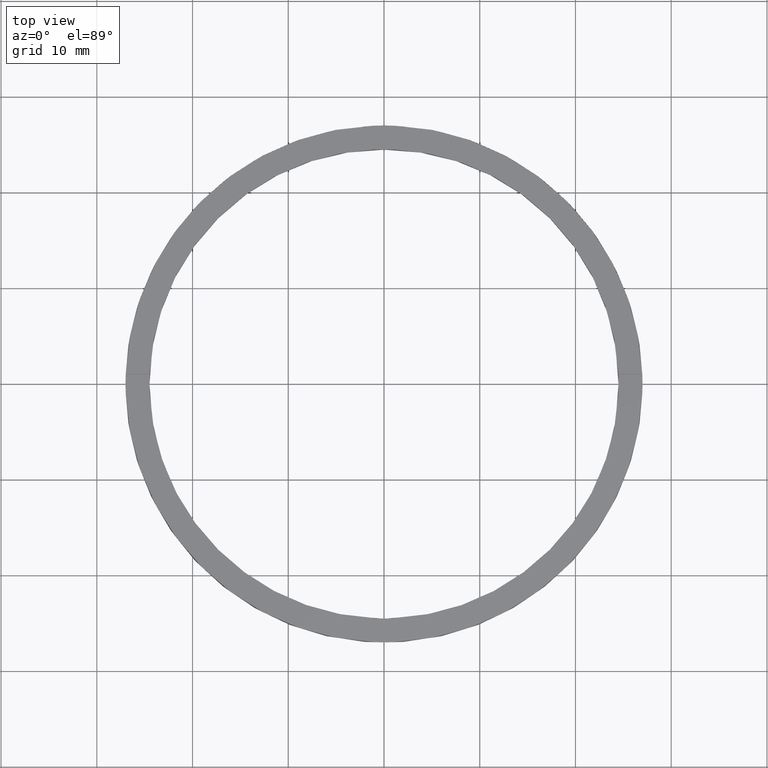
[diagram: clean part render]
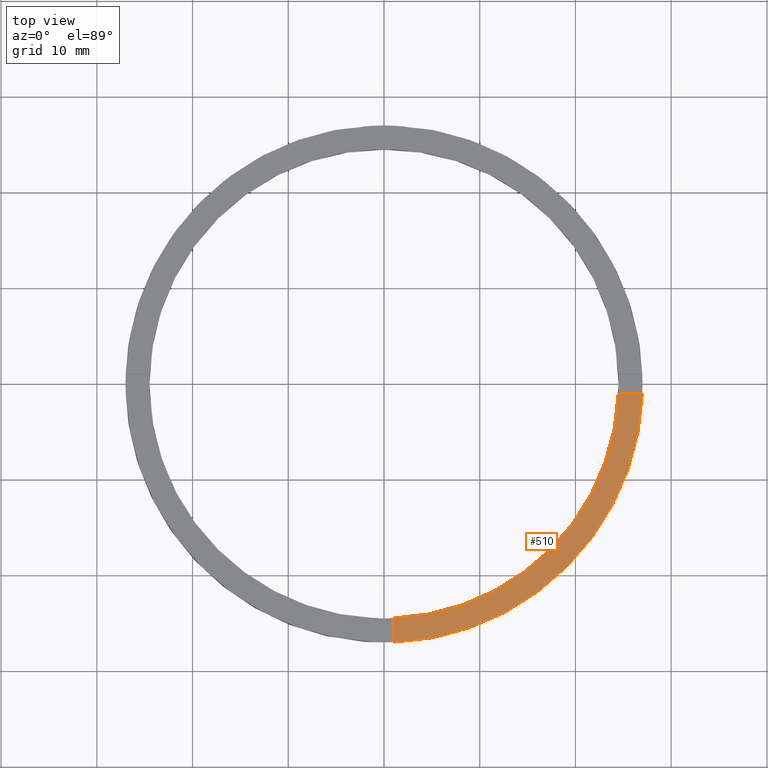
[diagram: same view with one face highlighted and labeled with its STEP entity id]
A machine part, top view. The second image highlights one B-rep face of the part: STEP entity #510.
In plain terms, the highlighted planar face has unit normal (0, 0, 1).
Its self-contained STEP definition (entity closure, byte-faithful):
#4 = DIRECTION ( 'NONE',  ( 1.000000000000000000, 4.336808689942018352E-17, 0.000000000000000000 ) ) ;
#32 = ORIENTED_EDGE ( 'NONE', *, *, #523, .F. ) ;
#66 = CARTESIAN_POINT ( 'NONE',  ( 0.000000000000000000, 0.000000000000000000, 2.500000000000000000 ) ) ;
#102 = CARTESIAN_POINT ( 'NONE',  ( 24.47958332978728890, -1.000000000000157208, 2.500000000000000000 ) ) ;
#117 = DIRECTION ( 'NONE',  ( 1.000000000000000000, 0.000000000000000000, 0.000000000000000000 ) ) ;
#125 = EDGE_CURVE ( 'NONE', #708, #446, #304, .T. ) ;
#128 = CARTESIAN_POINT ( 'NONE',  ( 0.9999999999998400169, -26.98147512646408686, 2.500000000000000000 ) ) ;
#144 = LINE ( 'NONE', #547, #153 ) ;
#148 = CIRCLE ( 'NONE', #261, 27.00000000000000000 ) ;
#153 = VECTOR ( 'NONE', #4, 1000.000000000000000 ) ;
#168 = AXIS2_PLACEMENT_3D ( 'NONE', #66, #663, #303 ) ;
#170 = LINE ( 'NONE', #597, #177 ) ;
#177 = VECTOR ( 'NONE', #217, 1000.000000000000000 ) ;
#184 = VERTEX_POINT ( 'NONE', #671 ) ;
#194 = VERTEX_POINT ( 'NONE', #128 ) ;
#195 = CARTESIAN_POINT ( 'NONE',  ( 0.000000000000000000, 0.000000000000000000, 2.500000000000000000 ) ) ;
#203 = EDGE_CURVE ( 'NONE', #446, #184, #144, .T. ) ;
#217 = DIRECTION ( 'NONE',  ( -1.301042606982605567E-16, 1.000000000000000000, -0.000000000000000000 ) ) ;
#222 = PLANE ( 'NONE',  #168 ) ;
#261 = AXIS2_PLACEMENT_3D ( 'NONE', #195, #591, #117 ) ;
#286 = DIRECTION ( 'NONE',  ( 1.000000000000000000, 0.000000000000000000, 0.000000000000000000 ) ) ;
#288 = EDGE_CURVE ( 'NONE', #194, #184, #148, .T. ) ;
#303 = DIRECTION ( 'NONE',  ( 1.000000000000000000, 0.000000000000000000, -0.000000000000000000 ) ) ;
#304 = CIRCLE ( 'NONE', #540, 24.50000000000000000 ) ;
#321 = ORIENTED_EDGE ( 'NONE', *, *, #203, .F. ) ;
#446 = VERTEX_POINT ( 'NONE', #102 ) ;
#510 = ADVANCED_FACE ( 'NONE', ( #660 ), #222, .T. ) ;
#523 = EDGE_CURVE ( 'NONE', #194, #708, #170, .T. ) ;
#540 = AXIS2_PLACEMENT_3D ( 'NONE', #746, #775, #286 ) ;
#547 = CARTESIAN_POINT ( 'NONE',  ( 16.99999999999999645, -1.000000000000157652, 2.500000000000000000 ) ) ;
#591 = DIRECTION ( 'NONE',  ( 0.000000000000000000, 0.000000000000000000, 1.000000000000000000 ) ) ;
#597 = CARTESIAN_POINT ( 'NONE',  ( 0.9999999999998386846, -17.00000000000018119, 2.500000000000000000 ) ) ;
#660 = FACE_OUTER_BOUND ( 'NONE', #704, .T. ) ;
#663 = DIRECTION ( 'NONE',  ( 0.000000000000000000, 0.000000000000000000, 1.000000000000000000 ) ) ;
#671 = CARTESIAN_POINT ( 'NONE',  ( 26.98147512646407620, -1.000000000000157208, 2.500000000000000000 ) ) ;
#701 = ORIENTED_EDGE ( 'NONE', *, *, #125, .F. ) ;
#703 = CARTESIAN_POINT ( 'NONE',  ( 0.9999999999998397948, -24.47958332978729956, 2.500000000000000000 ) ) ;
#704 = EDGE_LOOP ( 'NONE', ( #321, #701, #32, #734 ) ) ;
#708 = VERTEX_POINT ( 'NONE', #703 ) ;
#734 = ORIENTED_EDGE ( 'NONE', *, *, #288, .T. ) ;
#746 = CARTESIAN_POINT ( 'NONE',  ( 0.000000000000000000, 0.000000000000000000, 2.500000000000000000 ) ) ;
#775 = DIRECTION ( 'NONE',  ( 0.000000000000000000, 0.000000000000000000, 1.000000000000000000 ) ) ;